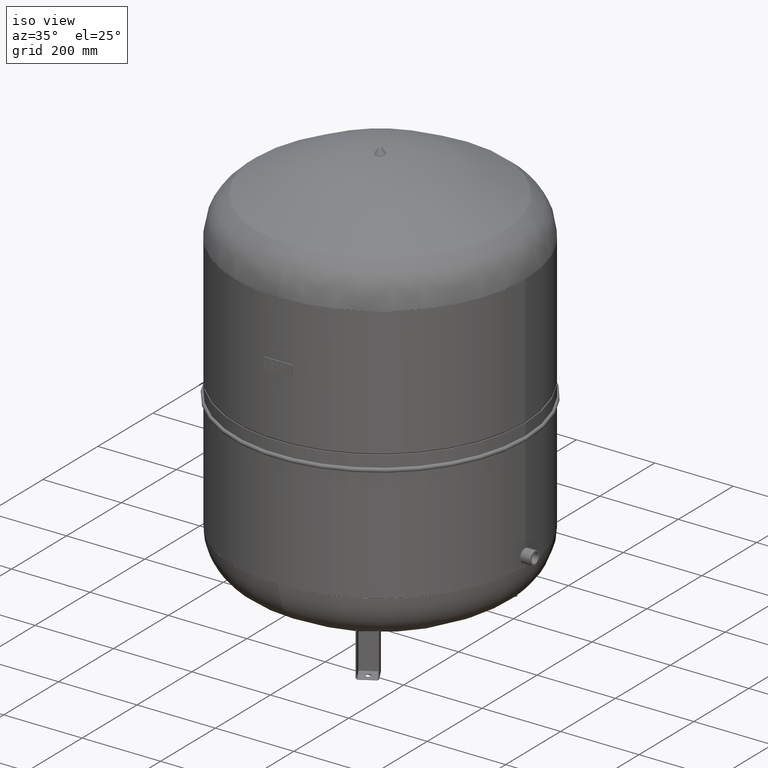
[diagram: clean part render]
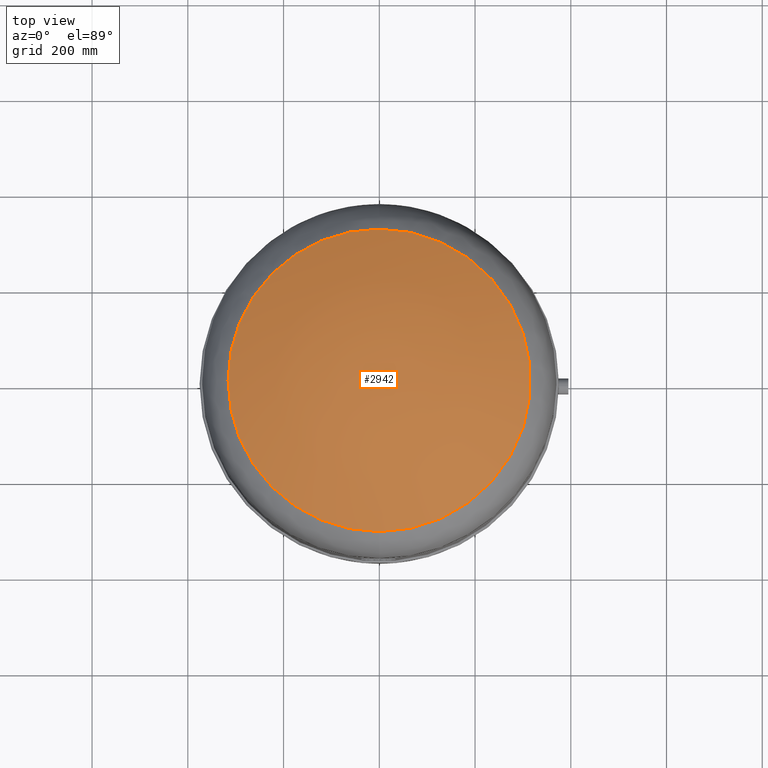
[diagram: tour spotlight — one face highlighted and labeled with its STEP entity id]
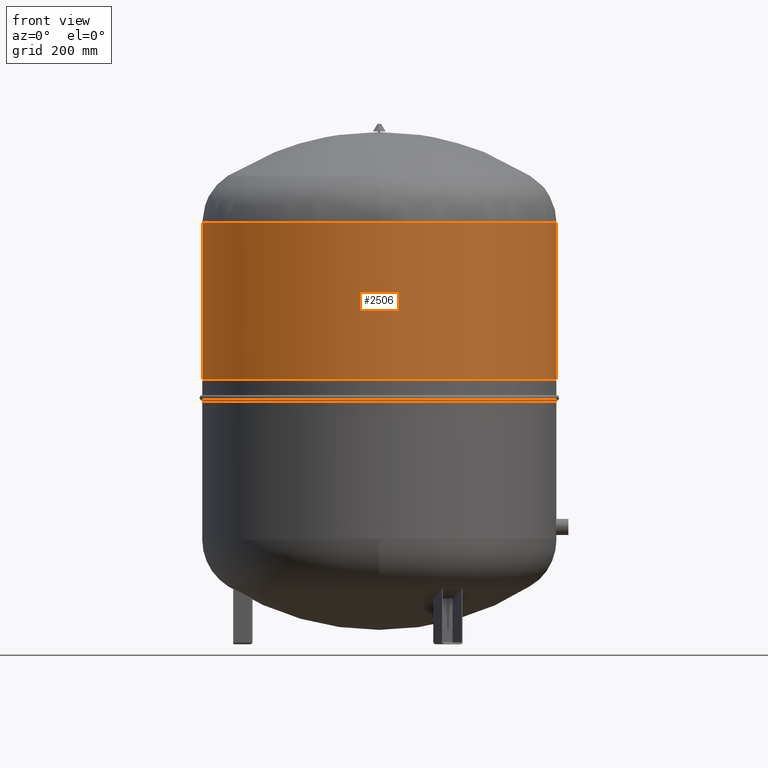
[diagram: tour spotlight — one face highlighted and labeled with its STEP entity id]
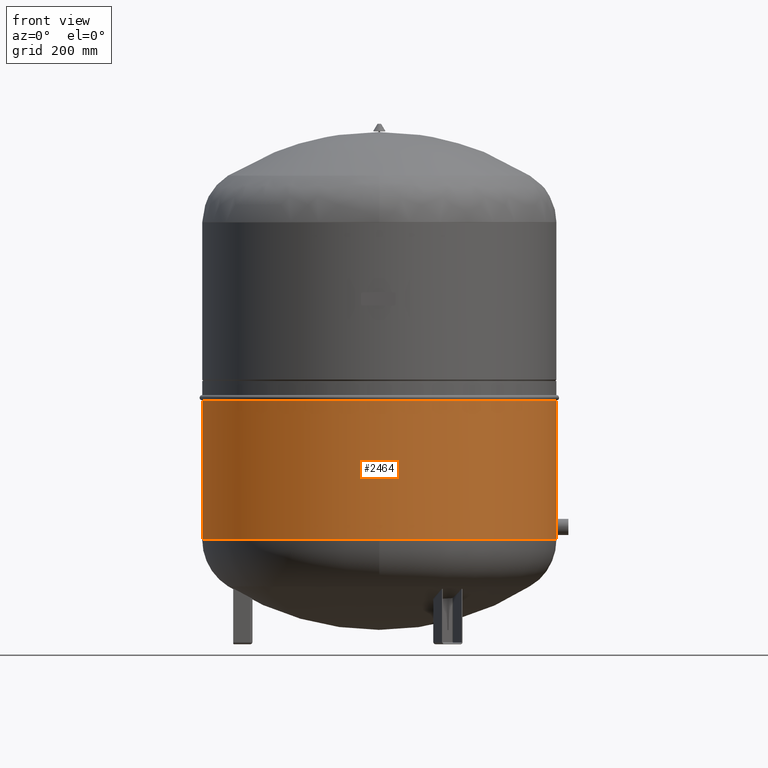
[diagram: tour spotlight — one face highlighted and labeled with its STEP entity id]
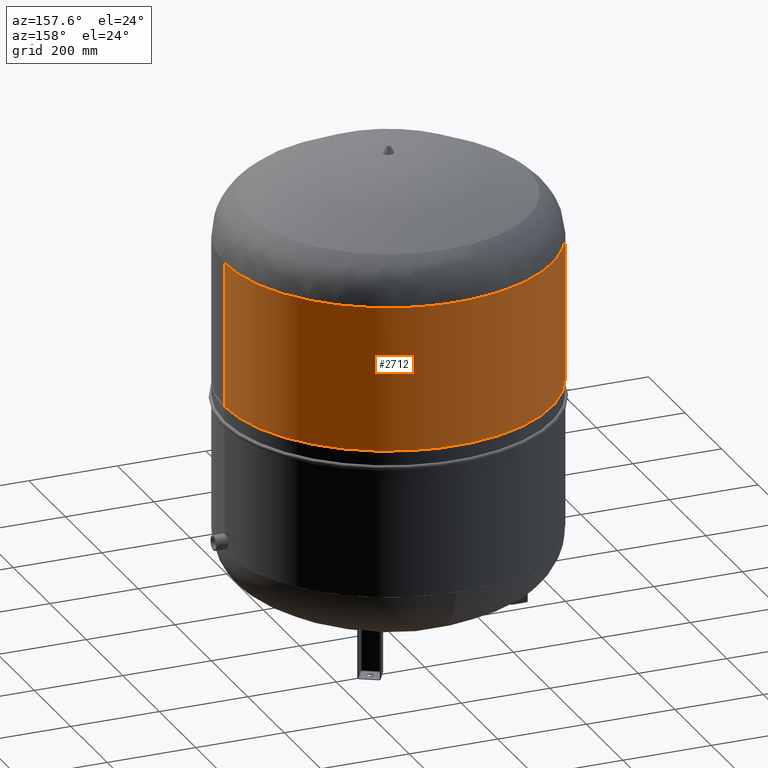
[diagram: tour spotlight — one face highlighted and labeled with its STEP entity id]
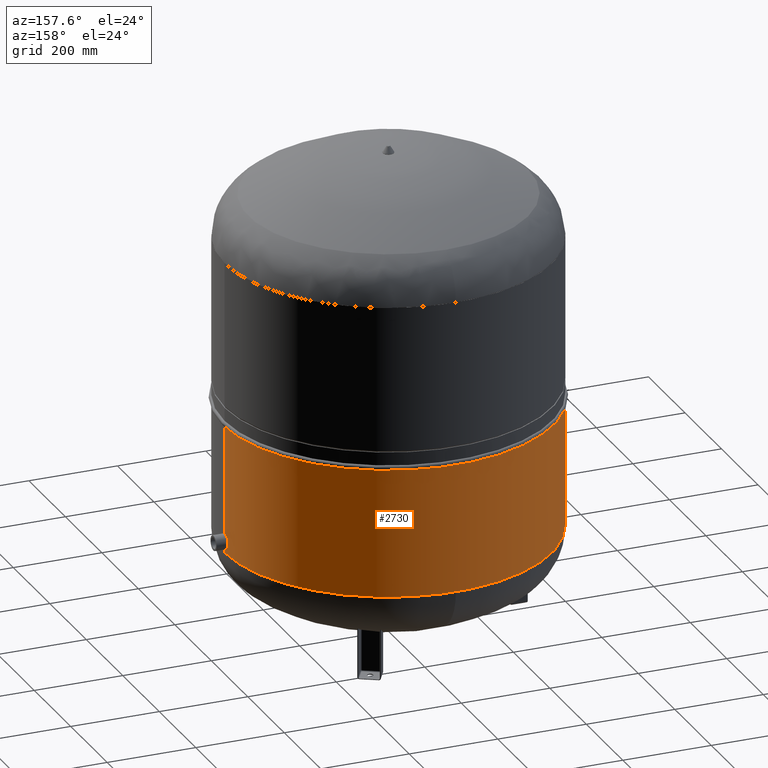
[diagram: tour spotlight — one face highlighted and labeled with its STEP entity id]
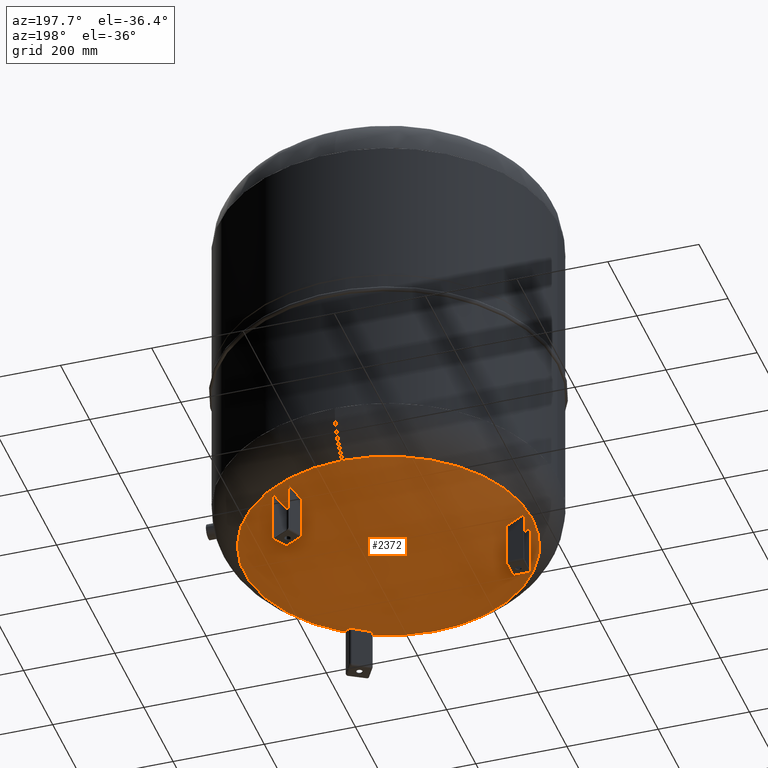
[diagram: tour spotlight — one face highlighted and labeled with its STEP entity id]
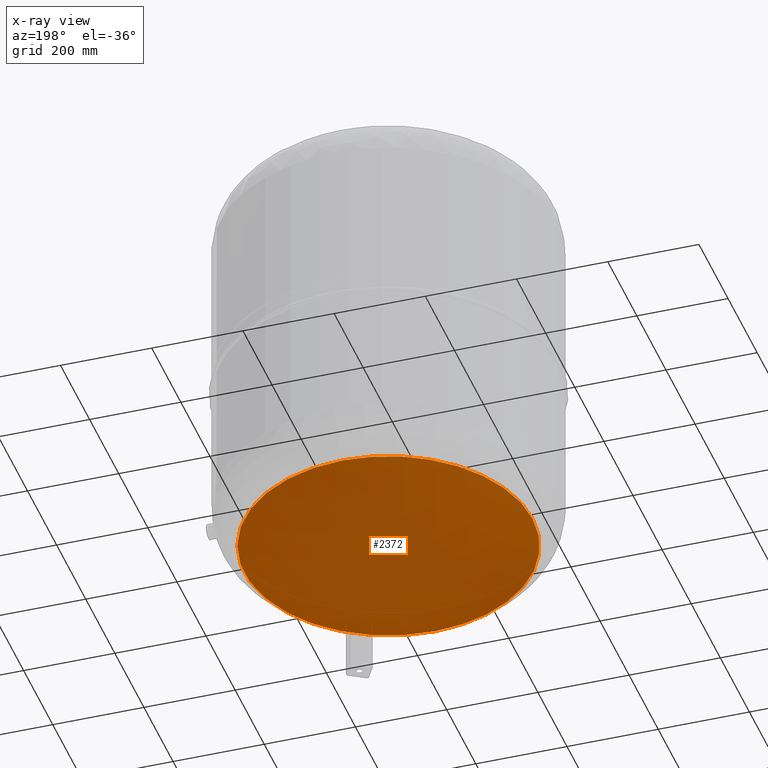
[diagram: x-ray of the same camera — body ghosted, this tour face saturated]
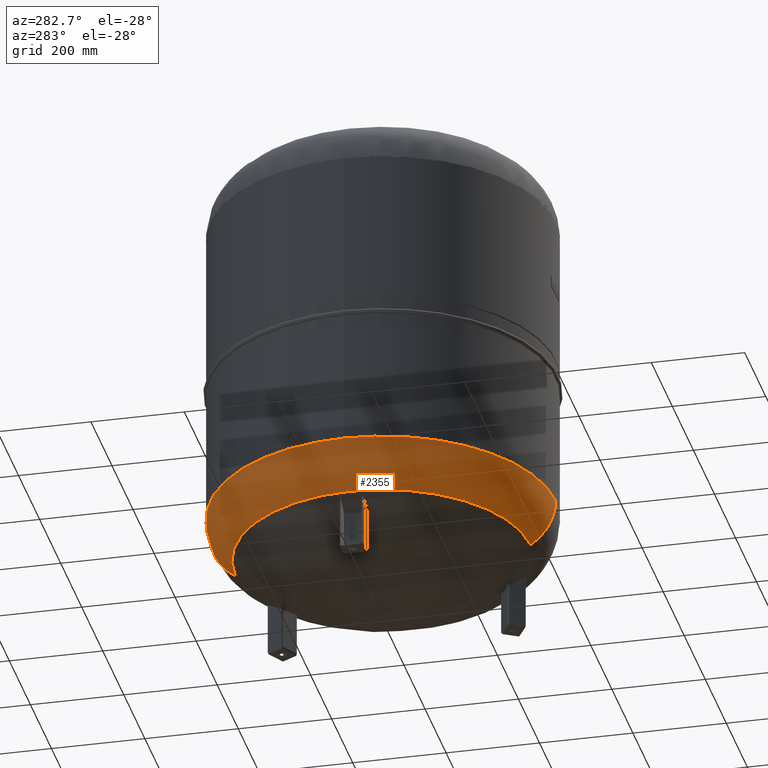
[diagram: tour spotlight — one face highlighted and labeled with its STEP entity id]
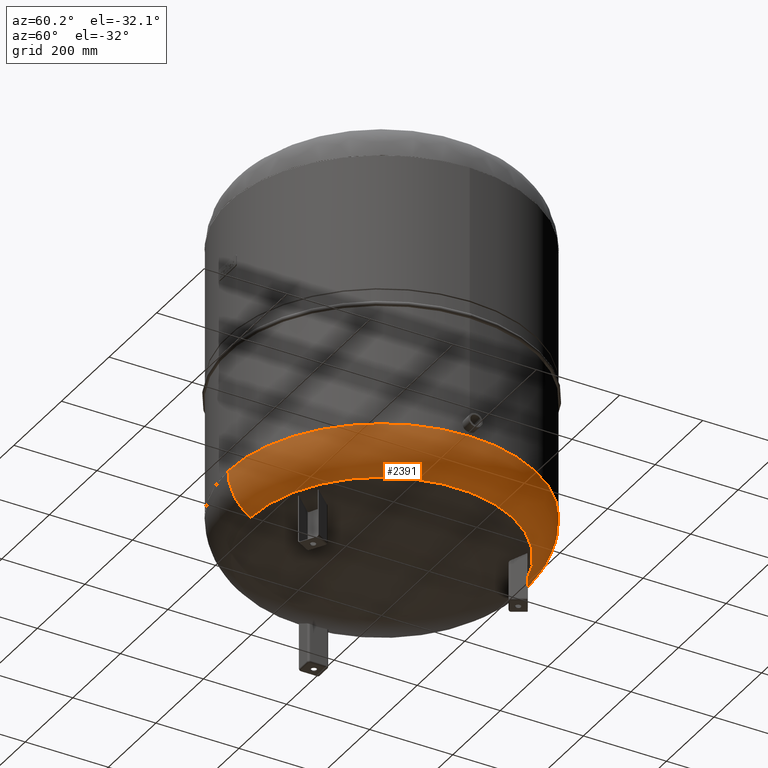
[diagram: tour spotlight — one face highlighted and labeled with its STEP entity id]
A machine part: a face-by-face anatomy tour. The part has 250 B-rep faces; the first image is the clean iso view, then the 8 largest visible faces are spotlighted one at a time (largest first), each with its STEP entity span.

Face 1 — top view, entity #2942. In plain terms, the highlighted face is a freeform B-spline surface patch.
Definition (entity closure, byte-faithful):
#2868=CARTESIAN_POINT('',(0.0,-315.931034482758610,979.014494274920590));
#2869=VERTEX_POINT('',#2868);
#2887=CARTESIAN_POINT('',(-3.868912E-014,315.931034482758610,979.014494274920370));
#2888=VERTEX_POINT('',#2887);
#2896=CARTESIAN_POINT('',(0.0,-1.671377E-014,979.014494274920480));
#2897=DIRECTION('',(0.0,0.0,1.0));
#2898=DIRECTION('',(-1.0,0.0,0.0));
#2899=AXIS2_PLACEMENT_3D('',#2896,#2897,#2898);
#2900=CIRCLE('',#2899,315.931034482758610);
#2901=EDGE_CURVE('',#2869,#2888,#2900,.T.);
#2906=CARTESIAN_POINT('',(-267.538534572554570,315.931034482758550,901.965625337801160));
#2907=CARTESIAN_POINT('',(-373.076793250797100,-1.989520E-013,1070.0));
#2908=CARTESIAN_POINT('',(-267.538534572554570,-315.931034482758660,901.965625337801380));
#2909=CARTESIAN_POINT('',(-5.684342E-014,315.931034482758610,1070.0));
#2910=CARTESIAN_POINT('',(0.0,-1.559080E-013,1304.320359700838300));
#2911=CARTESIAN_POINT('',(0.0,-315.931034482758610,1070.000000000000500));
#2912=CARTESIAN_POINT('',(267.538534572554400,315.931034482758550,901.965625337801160));
#2913=CARTESIAN_POINT('',(373.076793250797150,-1.989520E-013,1070.0));
#2914=CARTESIAN_POINT('',(267.538534572554510,-315.931034482758660,901.965625337801380));
#2922=(BOUNDED_SURFACE()B_SPLINE_SURFACE(2,2,((#2906,#2909,#2912),(#2907,#2910,#2913),(#2908,#2911,#2914)),.UNSPECIFIED.,.F.,.F.,.U.)B_SPLINE_SURFACE_WITH_KNOTS((3,3),(3,3),(-0.560807789616945,0.560807789616945),(0.0,1.121615579233890),.UNSPECIFIED.)GEOMETRIC_REPRESENTATION_ITEM()RATIONAL_B_SPLINE_SURFACE(((1.0,0.846825747937576,1.0),(0.846825747937575,0.717113847370035,0.846825747937575),(1.0,0.846825747937576,1.0)))REPRESENTATION_ITEM('')SURFACE());
#2923=CARTESIAN_POINT('',(-315.931034482758610,-1.671377E-014,979.014494274920480));
#2924=VERTEX_POINT('',#2923);
#2925=CARTESIAN_POINT('',(0.0,-1.671377E-014,979.014494274920480));
#2926=DIRECTION('',(0.0,0.0,1.0));
#2927=DIRECTION('',(-1.0,0.0,0.0));
#2928=AXIS2_PLACEMENT_3D('',#2925,#2926,#2927);
#2929=CIRCLE('',#2928,315.931034482758610);
#2930=EDGE_CURVE('',#2924,#2869,#2929,.T.);
#2931=ORIENTED_EDGE('',*,*,#2930,.T.);
#2932=ORIENTED_EDGE('',*,*,#2901,.T.);
#2933=CARTESIAN_POINT('',(0.0,-1.671377E-014,979.014494274920480));
#2934=DIRECTION('',(0.0,0.0,1.0));
#2935=DIRECTION('',(-1.0,0.0,0.0));
#2936=AXIS2_PLACEMENT_3D('',#2933,#2934,#2935);
#2937=CIRCLE('',#2936,315.931034482758610);
#2938=EDGE_CURVE('',#2888,#2924,#2937,.T.);
#2939=ORIENTED_EDGE('',*,*,#2938,.T.);
#2940=EDGE_LOOP('',(#2931,#2932,#2939));
#2941=FACE_OUTER_BOUND('',#2940,.T.);
#2942=ADVANCED_FACE('',(#2941),#2922,.T.);

Face 2 — front view, entity #2506. In plain terms, the highlighted cylindrical surface (partial cylindrical patch) has radius 370 mm, axis along (0, 0, 1).
Definition (entity closure, byte-faithful):
#2465=CARTESIAN_POINT('',(8.420767E-015,0.0,714.500000000000000));
#2466=DIRECTION('',(5.119008E-017,0.0,1.0));
#2467=DIRECTION('',(1.0,0.0,0.0));
#2468=AXIS2_PLACEMENT_3D('',#2465,#2466,#2467);
#2469=CYLINDRICAL_SURFACE('',#2468,369.999999999999890);
#2470=CARTESIAN_POINT('',(370.0,0.0,881.0));
#2471=VERTEX_POINT('',#2470);
#2472=CARTESIAN_POINT('',(369.999999999999770,0.0,553.0));
#2473=VERTEX_POINT('',#2472);
#2474=CARTESIAN_POINT('',(370.0,0.0,881.0));
#2475=DIRECTION('',(0.0,0.0,-1.0));
#2476=VECTOR('',#2475,328.0);
#2477=LINE('',#2474,#2476);
#2478=EDGE_CURVE('',#2471,#2473,#2477,.T.);
#2479=ORIENTED_EDGE('',*,*,#2478,.F.);
#2480=CARTESIAN_POINT('',(-369.999999999999890,-4.531044E-014,881.0));
#2481=VERTEX_POINT('',#2480);
#2482=CARTESIAN_POINT('',(1.668796E-014,0.0,881.0));
#2483=DIRECTION('',(0.0,0.0,1.0));
#2484=DIRECTION('',(1.0,0.0,0.0));
#2485=AXIS2_PLACEMENT_3D('',#2482,#2483,#2484);
#2486=CIRCLE('',#2485,370.0);
#2487=EDGE_CURVE('',#2481,#2471,#2486,.T.);
#2488=ORIENTED_EDGE('',*,*,#2487,.F.);
#2489=CARTESIAN_POINT('',(-369.999999999999770,-4.531044E-014,553.0));
#2490=VERTEX_POINT('',#2489);
#2491=CARTESIAN_POINT('',(-369.999999999999890,-4.531044E-014,881.0));
#2492=DIRECTION('',(0.0,0.0,-1.0));
#2493=VECTOR('',#2492,328.0);
#2494=LINE('',#2491,#2493);
#2495=EDGE_CURVE('',#2481,#2490,#2494,.T.);
#2496=ORIENTED_EDGE('',*,*,#2495,.T.);
#2497=CARTESIAN_POINT('',(1.535702E-016,0.0,553.0));
#2498=DIRECTION('',(0.0,0.0,1.0));
#2499=DIRECTION('',(1.0,0.0,0.0));
#2500=AXIS2_PLACEMENT_3D('',#2497,#2498,#2499);
#2501=CIRCLE('',#2500,369.999999999999770);
#2502=EDGE_CURVE('',#2490,#2473,#2501,.T.);
#2503=ORIENTED_EDGE('',*,*,#2502,.T.);
#2504=EDGE_LOOP('',(#2479,#2488,#2496,#2503));
#2505=FACE_OUTER_BOUND('',#2504,.T.);
#2506=ADVANCED_FACE('',(#2505),#2469,.T.);

Face 3 — front view, entity #2464. In plain terms, the highlighted cylindrical surface (partial cylindrical patch) has radius 370 mm, axis along (0, 0, 1).
Definition (entity closure, byte-faithful):
#2423=CARTESIAN_POINT('',(-1.668796E-014,0.0,221.500000000000000));
#2424=DIRECTION('',(0.0,0.0,1.0));
#2425=DIRECTION('',(1.0,0.0,0.0));
#2426=AXIS2_PLACEMENT_3D('',#2423,#2424,#2425);
#2427=CYLINDRICAL_SURFACE('',#2426,370.0);
#2428=CARTESIAN_POINT('',(370.000000000000060,0.0,509.549999999999950));
#2429=VERTEX_POINT('',#2428);
#2430=CARTESIAN_POINT('',(370.0,0.0,219.0));
#2431=VERTEX_POINT('',#2430);
#2432=CARTESIAN_POINT('',(370.000000000000060,0.0,509.549999999999950));
#2433=DIRECTION('',(0.0,0.0,-1.0));
#2434=VECTOR('',#2433,290.549999999999950);
#2435=LINE('',#2432,#2434);
#2436=EDGE_CURVE('',#2429,#2431,#2435,.T.);
#2437=ORIENTED_EDGE('',*,*,#2436,.F.);
#2438=CARTESIAN_POINT('',(-370.000000000000060,-4.531044E-014,509.549999999999950));
#2439=VERTEX_POINT('',#2438);
#2440=CARTESIAN_POINT('',(-2.070639E-015,0.0,509.549999999999950));
#2441=DIRECTION('',(0.0,0.0,1.0));
#2442=DIRECTION('',(1.0,0.0,0.0));
#2443=AXIS2_PLACEMENT_3D('',#2440,#2441,#2442);
#2444=CIRCLE('',#2443,370.000000000000060);
#2445=EDGE_CURVE('',#2439,#2429,#2444,.T.);
#2446=ORIENTED_EDGE('',*,*,#2445,.F.);
#2447=CARTESIAN_POINT('',(-370.0,-4.531044E-014,219.0));
#2448=VERTEX_POINT('',#2447);
#2449=CARTESIAN_POINT('',(-370.000000000000060,-4.531044E-014,509.549999999999950));
#2450=DIRECTION('',(0.0,0.0,-1.0));
#2451=VECTOR('',#2450,290.549999999999950);
#2452=LINE('',#2449,#2451);
#2453=EDGE_CURVE('',#2439,#2448,#2452,.T.);
#2454=ORIENTED_EDGE('',*,*,#2453,.T.);
#2455=CARTESIAN_POINT('',(-1.668796E-014,0.0,219.0));
#2456=DIRECTION('',(0.0,0.0,-1.0));
#2457=DIRECTION('',(1.0,0.0,0.0));
#2458=AXIS2_PLACEMENT_3D('',#2455,#2456,#2457);
#2459=CIRCLE('',#2458,370.0);
#2460=EDGE_CURVE('',#2431,#2448,#2459,.T.);
#2461=ORIENTED_EDGE('',*,*,#2460,.F.);
#2462=EDGE_LOOP('',(#2437,#2446,#2454,#2461));
#2463=FACE_OUTER_BOUND('',#2462,.T.);
#2464=ADVANCED_FACE('',(#2463),#2427,.T.);

Face 4 — auxiliary view, entity #2712. In plain terms, the highlighted cylindrical surface (partial cylindrical patch) has radius 370 mm, axis along (0, 0, 1).
Definition (entity closure, byte-faithful):
#2470=CARTESIAN_POINT('',(370.0,0.0,881.0));
#2471=VERTEX_POINT('',#2470);
#2472=CARTESIAN_POINT('',(369.999999999999770,0.0,553.0));
#2473=VERTEX_POINT('',#2472);
#2474=CARTESIAN_POINT('',(370.0,0.0,881.0));
#2475=DIRECTION('',(0.0,0.0,-1.0));
#2476=VECTOR('',#2475,328.0);
#2477=LINE('',#2474,#2476);
#2478=EDGE_CURVE('',#2471,#2473,#2477,.T.);
#2480=CARTESIAN_POINT('',(-369.999999999999890,-4.531044E-014,881.0));
#2481=VERTEX_POINT('',#2480);
#2489=CARTESIAN_POINT('',(-369.999999999999770,-4.531044E-014,553.0));
#2490=VERTEX_POINT('',#2489);
#2491=CARTESIAN_POINT('',(-369.999999999999890,-4.531044E-014,881.0));
#2492=DIRECTION('',(0.0,0.0,-1.0));
#2493=VECTOR('',#2492,328.0);
#2494=LINE('',#2491,#2493);
#2495=EDGE_CURVE('',#2481,#2490,#2494,.T.);
#2610=CARTESIAN_POINT('',(1.668796E-014,0.0,881.0));
#2611=DIRECTION('',(0.0,0.0,1.0));
#2612=DIRECTION('',(1.0,0.0,0.0));
#2613=AXIS2_PLACEMENT_3D('',#2610,#2611,#2612);
#2614=CIRCLE('',#2613,370.0);
#2615=EDGE_CURVE('',#2471,#2481,#2614,.T.);
#2691=CARTESIAN_POINT('',(1.535702E-016,0.0,553.0));
#2692=DIRECTION('',(0.0,0.0,1.0));
#2693=DIRECTION('',(1.0,0.0,0.0));
#2694=AXIS2_PLACEMENT_3D('',#2691,#2692,#2693);
#2695=CIRCLE('',#2694,369.999999999999770);
#2696=EDGE_CURVE('',#2473,#2490,#2695,.T.);
#2701=CARTESIAN_POINT('',(8.420767E-015,0.0,714.500000000000000));
#2702=DIRECTION('',(5.119008E-017,0.0,1.0));
#2703=DIRECTION('',(1.0,0.0,0.0));
#2704=AXIS2_PLACEMENT_3D('',#2701,#2702,#2703);
#2705=CYLINDRICAL_SURFACE('',#2704,369.999999999999890);
#2706=ORIENTED_EDGE('',*,*,#2478,.T.);
#2707=ORIENTED_EDGE('',*,*,#2696,.T.);
#2708=ORIENTED_EDGE('',*,*,#2495,.F.);
#2709=ORIENTED_EDGE('',*,*,#2615,.F.);
#2710=EDGE_LOOP('',(#2706,#2707,#2708,#2709));
#2711=FACE_OUTER_BOUND('',#2710,.T.);
#2712=ADVANCED_FACE('',(#2711),#2705,.T.);

Face 5 — auxiliary view, entity #2730. In plain terms, the highlighted cylindrical surface (partial cylindrical patch) has radius 370 mm, axis along (0, 0, 1).
Definition (entity closure, byte-faithful):
#2428=CARTESIAN_POINT('',(370.000000000000060,0.0,509.549999999999950));
#2429=VERTEX_POINT('',#2428);
#2430=CARTESIAN_POINT('',(370.0,0.0,219.0));
#2431=VERTEX_POINT('',#2430);
#2432=CARTESIAN_POINT('',(370.000000000000060,0.0,509.549999999999950));
#2433=DIRECTION('',(0.0,0.0,-1.0));
#2434=VECTOR('',#2433,290.549999999999950);
#2435=LINE('',#2432,#2434);
#2436=EDGE_CURVE('',#2429,#2431,#2435,.T.);
#2438=CARTESIAN_POINT('',(-370.000000000000060,-4.531044E-014,509.549999999999950));
#2439=VERTEX_POINT('',#2438);
#2447=CARTESIAN_POINT('',(-370.0,-4.531044E-014,219.0));
#2448=VERTEX_POINT('',#2447);
#2449=CARTESIAN_POINT('',(-370.000000000000060,-4.531044E-014,509.549999999999950));
#2450=DIRECTION('',(0.0,0.0,-1.0));
#2451=VECTOR('',#2450,290.549999999999950);
#2452=LINE('',#2449,#2451);
#2453=EDGE_CURVE('',#2439,#2448,#2452,.T.);
#2627=CARTESIAN_POINT('',(-2.070639E-015,0.0,509.549999999999950));
#2628=DIRECTION('',(0.0,0.0,1.0));
#2629=DIRECTION('',(1.0,0.0,0.0));
#2630=AXIS2_PLACEMENT_3D('',#2627,#2628,#2629);
#2631=CIRCLE('',#2630,370.000000000000060);
#2632=EDGE_CURVE('',#2429,#2439,#2631,.T.);
#2713=CARTESIAN_POINT('',(-1.668796E-014,0.0,221.500000000000000));
#2714=DIRECTION('',(0.0,0.0,1.0));
#2715=DIRECTION('',(1.0,0.0,0.0));
#2716=AXIS2_PLACEMENT_3D('',#2713,#2714,#2715);
#2717=CYLINDRICAL_SURFACE('',#2716,370.0);
#2718=ORIENTED_EDGE('',*,*,#2436,.T.);
#2719=CARTESIAN_POINT('',(-1.668796E-014,0.0,219.0));
#2720=DIRECTION('',(0.0,0.0,-1.0));
#2721=DIRECTION('',(1.0,0.0,0.0));
#2722=AXIS2_PLACEMENT_3D('',#2719,#2720,#2721);
#2723=CIRCLE('',#2722,370.0);
#2724=EDGE_CURVE('',#2448,#2431,#2723,.T.);
#2725=ORIENTED_EDGE('',*,*,#2724,.F.);
#2726=ORIENTED_EDGE('',*,*,#2453,.F.);
#2727=ORIENTED_EDGE('',*,*,#2632,.F.);
#2728=EDGE_LOOP('',(#2718,#2725,#2726,#2727));
#2729=FACE_OUTER_BOUND('',#2728,.T.);
#2730=ADVANCED_FACE('',(#2729),#2717,.T.);

Face 6 — auxiliary view, entity #2372. An x-ray twin of the same camera follows (body ghosted, this face saturated) — the face is partly hidden behind the body. In plain terms, the highlighted spherical surface has radius 594 mm.
Definition (entity closure, byte-faithful):
#2311=CARTESIAN_POINT('',(0.0,-315.931034482758610,120.985505725079490));
#2312=VERTEX_POINT('',#2311);
#2328=CARTESIAN_POINT('',(-3.868912E-014,315.931034482758610,120.985505725079610));
#2329=VERTEX_POINT('',#2328);
#2337=CARTESIAN_POINT('',(-315.931034482758610,-1.671377E-014,120.985505725079550));
#2338=VERTEX_POINT('',#2337);
#2339=CARTESIAN_POINT('',(0.0,-1.671377E-014,120.985505725079550));
#2340=DIRECTION('',(0.0,0.0,1.0));
#2341=DIRECTION('',(-1.0,0.0,0.0));
#2342=AXIS2_PLACEMENT_3D('',#2339,#2340,#2341);
#2343=CIRCLE('',#2342,315.931034482758610);
#2344=EDGE_CURVE('',#2329,#2338,#2343,.T.);
#2346=CARTESIAN_POINT('',(0.0,-1.671377E-014,120.985505725079550));
#2347=DIRECTION('',(0.0,0.0,1.0));
#2348=DIRECTION('',(-1.0,0.0,0.0));
#2349=AXIS2_PLACEMENT_3D('',#2346,#2347,#2348);
#2350=CIRCLE('',#2349,315.931034482758610);
#2351=EDGE_CURVE('',#2338,#2312,#2350,.T.);
#2356=CARTESIAN_POINT('',(0.0,-1.091160E-013,624.0));
#2357=DIRECTION('',(0.0,-1.0,0.0));
#2358=DIRECTION('',(1.0,0.0,0.0));
#2359=AXIS2_PLACEMENT_3D('',#2356,#2357,#2358);
#2360=SPHERICAL_SURFACE('',#2359,594.0);
#2361=ORIENTED_EDGE('',*,*,#2351,.F.);
#2362=ORIENTED_EDGE('',*,*,#2344,.F.);
#2363=CARTESIAN_POINT('',(0.0,-1.671377E-014,120.985505725079550));
#2364=DIRECTION('',(0.0,0.0,1.0));
#2365=DIRECTION('',(-1.0,0.0,0.0));
#2366=AXIS2_PLACEMENT_3D('',#2363,#2364,#2365);
#2367=CIRCLE('',#2366,315.931034482758610);
#2368=EDGE_CURVE('',#2312,#2329,#2367,.T.);
#2369=ORIENTED_EDGE('',*,*,#2368,.F.);
#2370=EDGE_LOOP('',(#2361,#2362,#2369));
#2371=FACE_OUTER_BOUND('',#2370,.T.);
#2372=ADVANCED_FACE('',(#2371),#2360,.T.);

Face 7 — auxiliary view, entity #2355. In plain terms, the highlighted toroidal blend (fillet) surface has major radius 254.5 mm and minor (blend) radius 115.5 mm.
Definition (entity closure, byte-faithful):
#2260=CARTESIAN_POINT('',(-370.0,-3.468087E-014,218.793879611869530));
#2261=VERTEX_POINT('',#2260);
#2285=CARTESIAN_POINT('',(-4.531044E-014,369.999999999999940,218.793879611869580));
#2286=VERTEX_POINT('',#2285);
#2294=CARTESIAN_POINT('',(0.0,-3.468087E-014,218.793879611869530));
#2295=DIRECTION('',(0.0,0.0,1.0));
#2296=DIRECTION('',(-1.0,0.0,0.0));
#2297=AXIS2_PLACEMENT_3D('',#2294,#2295,#2296);
#2298=CIRCLE('',#2297,370.0);
#2299=EDGE_CURVE('',#2286,#2261,#2298,.T.);
#2304=CARTESIAN_POINT('',(0.0,-3.468087E-014,218.793879611869560));
#2305=DIRECTION('',(0.0,-1.836970E-016,1.0));
#2306=DIRECTION('',(0.0,-1.0,0.0));
#2307=AXIS2_PLACEMENT_3D('',#2304,#2305,#2306);
#2308=TOROIDAL_SURFACE('',#2307,254.500000000000030,115.500000000000000);
#2309=CARTESIAN_POINT('',(0.0,-370.000000000000060,218.793879611869470));
#2310=VERTEX_POINT('',#2309);
#2311=CARTESIAN_POINT('',(0.0,-315.931034482758610,120.985505725079490));
#2312=VERTEX_POINT('',#2311);
#2313=CARTESIAN_POINT('',(0.0,-254.500000000000060,218.793879611869530));
#2314=DIRECTION('',(1.0,0.0,0.0));
#2315=DIRECTION('',(0.0,-1.0,0.0));
#2316=AXIS2_PLACEMENT_3D('',#2313,#2314,#2315);
#2317=CIRCLE('',#2316,115.500000000000000);
#2318=EDGE_CURVE('',#2310,#2312,#2317,.T.);
#2319=ORIENTED_EDGE('',*,*,#2318,.F.);
#2320=CARTESIAN_POINT('',(0.0,-3.468087E-014,218.793879611869530));
#2321=DIRECTION('',(0.0,0.0,1.0));
#2322=DIRECTION('',(-1.0,0.0,0.0));
#2323=AXIS2_PLACEMENT_3D('',#2320,#2321,#2322);
#2324=CIRCLE('',#2323,370.0);
#2325=EDGE_CURVE('',#2261,#2310,#2324,.T.);
#2326=ORIENTED_EDGE('',*,*,#2325,.F.);
#2327=ORIENTED_EDGE('',*,*,#2299,.F.);
#2328=CARTESIAN_POINT('',(-3.868912E-014,315.931034482758610,120.985505725079610));
#2329=VERTEX_POINT('',#2328);
#2330=CARTESIAN_POINT('',(-3.116623E-014,254.500000000000000,218.793879611869580));
#2331=DIRECTION('',(-1.0,0.0,0.0));
#2332=DIRECTION('',(0.0,1.0,0.0));
#2333=AXIS2_PLACEMENT_3D('',#2330,#2331,#2332);
#2334=CIRCLE('',#2333,115.500000000000000);
#2335=EDGE_CURVE('',#2286,#2329,#2334,.T.);
#2336=ORIENTED_EDGE('',*,*,#2335,.T.);
#2337=CARTESIAN_POINT('',(-315.931034482758610,-1.671377E-014,120.985505725079550));
#2338=VERTEX_POINT('',#2337);
#2339=CARTESIAN_POINT('',(0.0,-1.671377E-014,120.985505725079550));
#2340=DIRECTION('',(0.0,0.0,1.0));
#2341=DIRECTION('',(-1.0,0.0,0.0));
#2342=AXIS2_PLACEMENT_3D('',#2339,#2340,#2341);
#2343=CIRCLE('',#2342,315.931034482758610);
#2344=EDGE_CURVE('',#2329,#2338,#2343,.T.);
#2345=ORIENTED_EDGE('',*,*,#2344,.T.);
#2346=CARTESIAN_POINT('',(0.0,-1.671377E-014,120.985505725079550));
#2347=DIRECTION('',(0.0,0.0,1.0));
#2348=DIRECTION('',(-1.0,0.0,0.0));
#2349=AXIS2_PLACEMENT_3D('',#2346,#2347,#2348);
#2350=CIRCLE('',#2349,315.931034482758610);
#2351=EDGE_CURVE('',#2338,#2312,#2350,.T.);
#2352=ORIENTED_EDGE('',*,*,#2351,.T.);
#2353=EDGE_LOOP('',(#2319,#2326,#2327,#2336,#2345,#2352));
#2354=FACE_OUTER_BOUND('',#2353,.T.);
#2355=ADVANCED_FACE('',(#2354),#2308,.T.);

Face 8 — auxiliary view, entity #2391. In plain terms, the highlighted toroidal blend (fillet) surface has major radius 254.5 mm and minor (blend) radius 115.5 mm.
Definition (entity closure, byte-faithful):
#2277=CARTESIAN_POINT('',(370.0,1.062956E-014,218.793879611869530));
#2278=VERTEX_POINT('',#2277);
#2285=CARTESIAN_POINT('',(-4.531044E-014,369.999999999999940,218.793879611869580));
#2286=VERTEX_POINT('',#2285);
#2287=CARTESIAN_POINT('',(0.0,-3.468087E-014,218.793879611869530));
#2288=DIRECTION('',(0.0,0.0,1.0));
#2289=DIRECTION('',(-1.0,0.0,0.0));
#2290=AXIS2_PLACEMENT_3D('',#2287,#2288,#2289);
#2291=CIRCLE('',#2290,370.0);
#2292=EDGE_CURVE('',#2278,#2286,#2291,.T.);
#2309=CARTESIAN_POINT('',(0.0,-370.000000000000060,218.793879611869470));
#2310=VERTEX_POINT('',#2309);
#2311=CARTESIAN_POINT('',(0.0,-315.931034482758610,120.985505725079490));
#2312=VERTEX_POINT('',#2311);
#2313=CARTESIAN_POINT('',(0.0,-254.500000000000060,218.793879611869530));
#2314=DIRECTION('',(1.0,0.0,0.0));
#2315=DIRECTION('',(0.0,-1.0,0.0));
#2316=AXIS2_PLACEMENT_3D('',#2313,#2314,#2315);
#2317=CIRCLE('',#2316,115.500000000000000);
#2318=EDGE_CURVE('',#2310,#2312,#2317,.T.);
#2328=CARTESIAN_POINT('',(-3.868912E-014,315.931034482758610,120.985505725079610));
#2329=VERTEX_POINT('',#2328);
#2330=CARTESIAN_POINT('',(-3.116623E-014,254.500000000000000,218.793879611869580));
#2331=DIRECTION('',(-1.0,0.0,0.0));
#2332=DIRECTION('',(0.0,1.0,0.0));
#2333=AXIS2_PLACEMENT_3D('',#2330,#2331,#2332);
#2334=CIRCLE('',#2333,115.500000000000000);
#2335=EDGE_CURVE('',#2286,#2329,#2334,.T.);
#2363=CARTESIAN_POINT('',(0.0,-1.671377E-014,120.985505725079550));
#2364=DIRECTION('',(0.0,0.0,1.0));
#2365=DIRECTION('',(-1.0,0.0,0.0));
#2366=AXIS2_PLACEMENT_3D('',#2363,#2364,#2365);
#2367=CIRCLE('',#2366,315.931034482758610);
#2368=EDGE_CURVE('',#2312,#2329,#2367,.T.);
#2373=CARTESIAN_POINT('',(0.0,-3.468087E-014,218.793879611869560));
#2374=DIRECTION('',(0.0,-1.836970E-016,1.0));
#2375=DIRECTION('',(0.0,-1.0,0.0));
#2376=AXIS2_PLACEMENT_3D('',#2373,#2374,#2375);
#2377=TOROIDAL_SURFACE('',#2376,254.500000000000030,115.500000000000000);
#2378=ORIENTED_EDGE('',*,*,#2318,.T.);
#2379=ORIENTED_EDGE('',*,*,#2368,.T.);
#2380=ORIENTED_EDGE('',*,*,#2335,.F.);
#2381=ORIENTED_EDGE('',*,*,#2292,.F.);
#2382=CARTESIAN_POINT('',(0.0,-3.468087E-014,218.793879611869530));
#2383=DIRECTION('',(0.0,0.0,1.0));
#2384=DIRECTION('',(-1.0,0.0,0.0));
#2385=AXIS2_PLACEMENT_3D('',#2382,#2383,#2384);
#2386=CIRCLE('',#2385,370.0);
#2387=EDGE_CURVE('',#2310,#2278,#2386,.T.);
#2388=ORIENTED_EDGE('',*,*,#2387,.F.);
#2389=EDGE_LOOP('',(#2378,#2379,#2380,#2381,#2388));
#2390=FACE_OUTER_BOUND('',#2389,.T.);
#2391=ADVANCED_FACE('',(#2390),#2377,.T.);